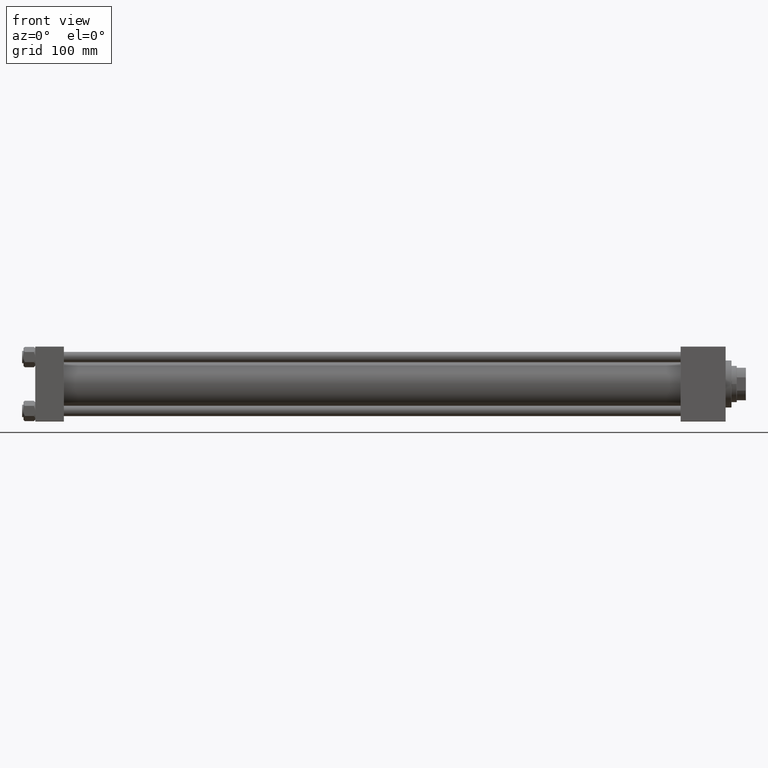
[diagram: clean part render]
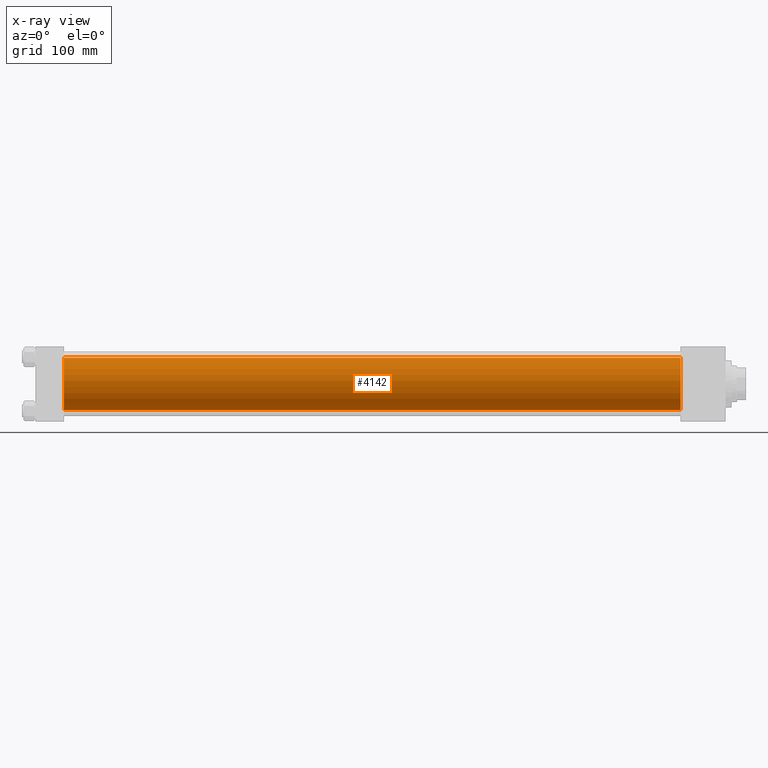
[diagram: x-ray — body ghosted, one internal face saturated and labeled with its STEP entity id]
A machine part, front view, then the same camera in x-ray: the body is ghosted and one INTERNAL B-rep face — a face not visible from any outside direction — is saturated and labeled: STEP entity #4142.
In plain terms, the highlighted cylindrical surface (edge-blend (fillet) strip) has radius 40 mm, axis along (-1, -0, -0).
Its self-contained STEP definition (entity closure, byte-faithful):
#4142 = ADVANCED_FACE ( 'NONE', ( #12391 ), #27989, .F. ) ;
#5561 = EDGE_LOOP ( 'NONE', ( #16673, #8342, #46063, #45251 ) ) ;
#6644 = EDGE_CURVE ( 'NONE', #20560, #20410, #35992, .T. ) ;
#6874 = AXIS2_PLACEMENT_3D ( 'NONE', #28456, #17683, #48177 ) ;
#8342 = ORIENTED_EDGE ( 'NONE', *, *, #18902, .T. ) ;
#10654 = DIRECTION ( 'NONE',  ( 0.000000000000000000, 0.000000000000000000, -1.000000000000000000 ) ) ;
#12391 = FACE_OUTER_BOUND ( 'NONE', #5561, .T. ) ;
#14692 = DIRECTION ( 'NONE',  ( -1.000000000000000000, -0.000000000000000000, -0.000000000000000000 ) ) ;
#15098 = EDGE_CURVE ( 'NONE', #16367, #20560, #40304, .T. ) ;
#16367 = VERTEX_POINT ( 'NONE', #33185 ) ;
#16673 = ORIENTED_EDGE ( 'NONE', *, *, #18235, .T. ) ;
#17306 = AXIS2_PLACEMENT_3D ( 'NONE', #39760, #43877, #31838 ) ;
#17683 = DIRECTION ( 'NONE',  ( 1.000000000000000000, 0.000000000000000000, 0.000000000000000000 ) ) ;
#18235 = EDGE_CURVE ( 'NONE', #16367, #31494, #50251, .T. ) ;
#18902 = EDGE_CURVE ( 'NONE', #31494, #20410, #30044, .T. ) ;
#20410 = VERTEX_POINT ( 'NONE', #34971 ) ;
#20560 = VERTEX_POINT ( 'NONE', #46752 ) ;
#21894 = DIRECTION ( 'NONE',  ( 1.000000000000000000, 0.000000000000000000, 0.000000000000000000 ) ) ;
#26207 = AXIS2_PLACEMENT_3D ( 'NONE', #34194, #21894, #10654 ) ;
#26893 = CARTESIAN_POINT ( 'NONE',  ( 990.0000000000000000, 2.296501982624201201E-15, -40.00000000000000000 ) ) ;
#27989 = CYLINDRICAL_SURFACE ( 'NONE', #17306, 40.00000000000000000 ) ;
#28456 = CARTESIAN_POINT ( 'NONE',  ( 990.0000000000000000, -2.602085213965210642E-15, 0.000000000000000000 ) ) ;
#30044 = LINE ( 'NONE', #30815, #41202 ) ;
#30815 = CARTESIAN_POINT ( 'NONE',  ( 990.0000000000000000, 2.296501982624201201E-15, -40.00000000000000000 ) ) ;
#31494 = VERTEX_POINT ( 'NONE', #26893 ) ;
#31838 = DIRECTION ( 'NONE',  ( 0.000000000000000000, 0.000000000000000000, 1.000000000000000000 ) ) ;
#33185 = CARTESIAN_POINT ( 'NONE',  ( 990.0000000000000000, -2.602085213965210642E-15, 40.00000000000000000 ) ) ;
#34194 = CARTESIAN_POINT ( 'NONE',  ( 44.00000000000000000, -2.602085213965210642E-15, 0.000000000000000000 ) ) ;
#34971 = CARTESIAN_POINT ( 'NONE',  ( 44.00000000000000000, 2.296501982624201201E-15, -40.00000000000000000 ) ) ;
#35992 = CIRCLE ( 'NONE', #26207, 40.00000000000000000 ) ;
#39760 = CARTESIAN_POINT ( 'NONE',  ( 990.0000000000000000, -2.602085213965210642E-15, 0.000000000000000000 ) ) ;
#39806 = DIRECTION ( 'NONE',  ( -1.000000000000000000, -0.000000000000000000, -0.000000000000000000 ) ) ;
#40304 = LINE ( 'NONE', #43669, #49290 ) ;
#41202 = VECTOR ( 'NONE', #14692, 1000.000000000000000 ) ;
#43669 = CARTESIAN_POINT ( 'NONE',  ( 990.0000000000000000, -2.602085213965210642E-15, 40.00000000000000000 ) ) ;
#43877 = DIRECTION ( 'NONE',  ( -1.000000000000000000, -0.000000000000000000, -0.000000000000000000 ) ) ;
#45251 = ORIENTED_EDGE ( 'NONE', *, *, #15098, .F. ) ;
#46063 = ORIENTED_EDGE ( 'NONE', *, *, #6644, .F. ) ;
#46752 = CARTESIAN_POINT ( 'NONE',  ( 44.00000000000000000, -2.602085213965210642E-15, 40.00000000000000000 ) ) ;
#48177 = DIRECTION ( 'NONE',  ( 0.000000000000000000, 0.000000000000000000, -1.000000000000000000 ) ) ;
#49290 = VECTOR ( 'NONE', #39806, 1000.000000000000000 ) ;
#50251 = CIRCLE ( 'NONE', #6874, 40.00000000000000000 ) ;